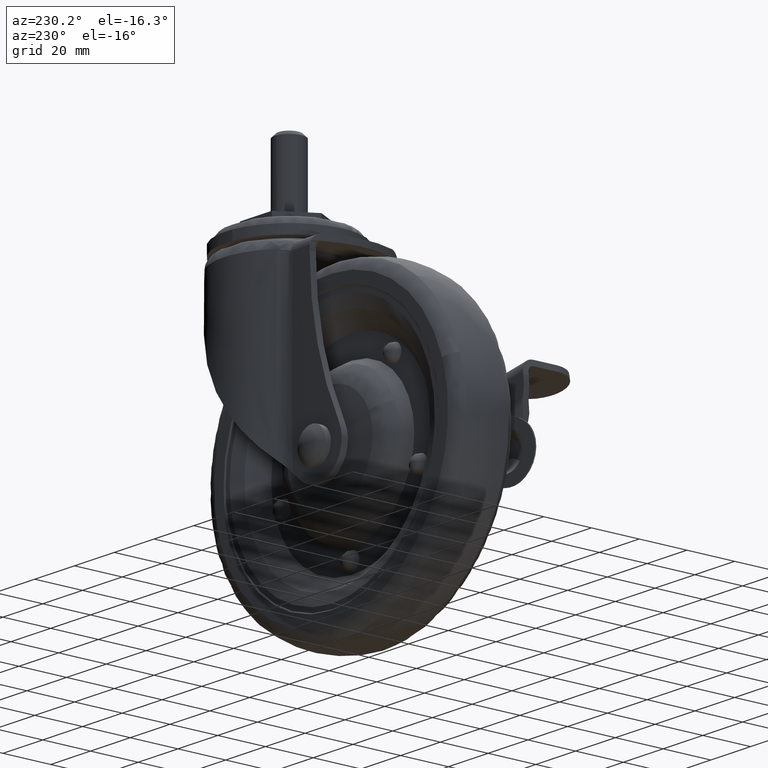
[diagram: clean part render]
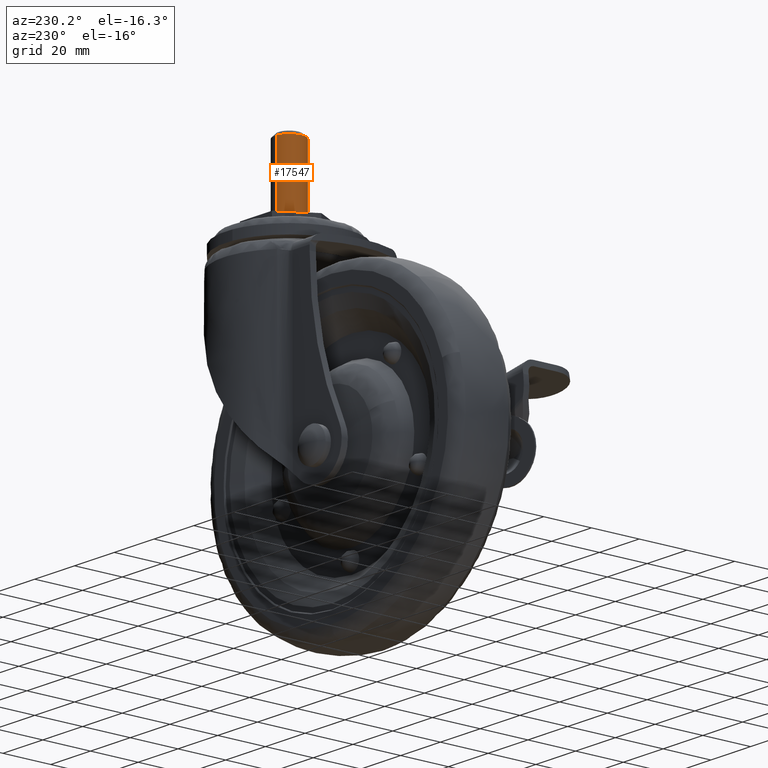
[diagram: same view with one face highlighted and labeled with its STEP entity id]
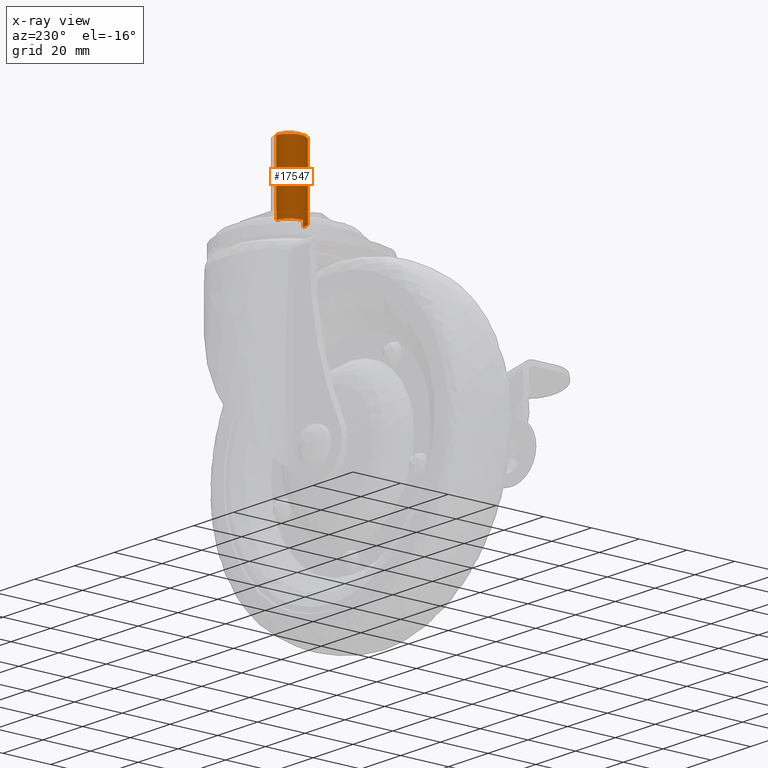
[diagram: x-ray of the same camera — body ghosted, the highlighted face saturated]
A machine part, auxiliary view. The second image highlights one B-rep face of the part: STEP entity #17547.
The next image is the same camera in x-ray: the body ghosted, the highlighted face saturated — about 1% of this face is hidden behind the body in this view.
In plain terms, the highlighted face is a freeform B-spline surface patch.
Its self-contained STEP definition (entity closure, byte-faithful):
#17292=CARTESIAN_POINT('',(0.366293618114310,-5.988847717787391,28.500000000000401));
#17293=VERTEX_POINT('',#17292);
#17337=CARTESIAN_POINT('',(-0.708210011420233,5.958095885536245,28.500000000000352));
#17338=VERTEX_POINT('',#17337);
#17354=CARTESIAN_POINT('',(-6.000038999999900,0.0,28.500000000000352));
#17355=VERTEX_POINT('',#17354);
#17356=CARTESIAN_POINT('',(-6.000038999999900,0.0,28.500000000000352));
#17357=CARTESIAN_POINT('',(-6.000038999999900,5.329081794254241,28.500000000000355));
#17358=CARTESIAN_POINT('',(-0.708210011420233,5.958095885536245,28.500000000000352));
#17366=(BOUNDED_CURVE()B_SPLINE_CURVE(2,(#17356,#17357,#17358),.UNSPECIFIED.,.F.,.U.)B_SPLINE_CURVE_WITH_KNOTS((3,3),(0.0,0.229562473507444),.UNSPECIFIED.)CURVE()GEOMETRIC_REPRESENTATION_ITEM()RATIONAL_B_SPLINE_CURVE((1.0,0.731050832862507,0.956026754171813))REPRESENTATION_ITEM(''));
#17367=EDGE_CURVE('',#17355,#17338,#17366,.T.);
#17369=CARTESIAN_POINT('',(0.366293618114310,-5.988847717787391,28.500000000000398));
#17370=CARTESIAN_POINT('',(0.183317771373645,-6.000038999999900,28.500000000000355));
#17371=CARTESIAN_POINT('',(0.0,-6.000038999999900,28.500000000000352));
#17372=CARTESIAN_POINT('',(-6.000038999999900,-6.000038999999900,28.500000000000348));
#17373=CARTESIAN_POINT('',(-6.000038999999900,0.0,28.500000000000352));
#17381=(BOUNDED_CURVE()B_SPLINE_CURVE(2,(#17369,#17370,#17371,#17372,#17373),.UNSPECIFIED.,.F.,.U.)B_SPLINE_CURVE_WITH_KNOTS((3,2,3),(0.739332962240569,0.750000000000000,1.0),.UNSPECIFIED.)CURVE()GEOMETRIC_REPRESENTATION_ITEM()RATIONAL_B_SPLINE_CURVE((0.976072041670204,0.987502787901743,1.0,0.707106781186547,1.0))REPRESENTATION_ITEM(''));
#17382=EDGE_CURVE('',#17293,#17355,#17381,.T.);
#17443=CARTESIAN_POINT('',(-0.708210011420234,5.958095885536245,1.249348E-015));
#17444=VERTEX_POINT('',#17443);
#17462=CARTESIAN_POINT('',(-0.708210011420233,5.958095885536245,28.500000000000352));
#17463=CARTESIAN_POINT('',(-0.708210011420234,5.958095885536245,1.249348E-015));
#17464=QUASI_UNIFORM_CURVE('',1,(#17462,#17463),.UNSPECIFIED.,.F.,.U.);
#17465=EDGE_CURVE('',#17338,#17444,#17464,.T.);
#17470=CARTESIAN_POINT('',(0.366293618126455,-5.988847717786754,-4.996004E-016));
#17471=VERTEX_POINT('',#17470);
#17472=CARTESIAN_POINT('',(0.366293618114310,-5.988847717787391,28.500000000000401));
#17473=CARTESIAN_POINT('',(0.366293618126455,-5.988847717786754,-4.996004E-016));
#17474=QUASI_UNIFORM_CURVE('',1,(#17472,#17473),.UNSPECIFIED.,.F.,.U.);
#17475=EDGE_CURVE('',#17293,#17471,#17474,.T.);
#17493=CARTESIAN_POINT('',(0.366293618102178,-5.988847717788238,29.212500000000372));
#17494=CARTESIAN_POINT('',(-5.622554099686061,-6.355141335890416,29.212500000000365));
#17495=CARTESIAN_POINT('',(-5.988847717788238,-0.366293618102178,29.212500000000372));
#17496=CARTESIAN_POINT('',(-6.334758356056731,5.289295325233060,29.212500000000361));
#17497=CARTESIAN_POINT('',(-0.708210011275691,5.958095885553426,29.212500000000368));
#17498=CARTESIAN_POINT('',(0.366293618102178,-5.988847717788238,-0.730312500000011));
#17499=CARTESIAN_POINT('',(-5.622554099686061,-6.355141335890416,-0.730312500000011));
#17500=CARTESIAN_POINT('',(-5.988847717788238,-0.366293618102178,-0.730312500000011));
#17501=CARTESIAN_POINT('',(-6.334758356056731,5.289295325233060,-0.730312500000011));
#17502=CARTESIAN_POINT('',(-0.708210011275691,5.958095885553426,-0.730312500000011));
#17510=(BOUNDED_SURFACE()B_SPLINE_SURFACE(2,1,((#17493,#17498),(#17494,#17499),(#17495,#17500),(#17496,#17501),(#17497,#17502)),.UNSPECIFIED.,.F.,.F.,.U.)B_SPLINE_SURFACE_WITH_KNOTS((3,2,3),(2,2),(0.0,9.941190114269842,19.484732623968888),(0.0,29.942812500000379),.UNSPECIFIED.)GEOMETRIC_REPRESENTATION_ITEM()RATIONAL_B_SPLINE_SURFACE(((1.0,1.0),(0.707106781186548,0.707106781186548),(1.0,1.0),(0.718822509939086,0.718822509939086),(0.977505800795127,0.977505800795127)))REPRESENTATION_ITEM('')SURFACE());
#17511=CARTESIAN_POINT('',(-6.000038999999900,0.0,0.0));
#17512=VERTEX_POINT('',#17511);
#17513=CARTESIAN_POINT('',(-6.000038999999900,0.0,0.0));
#17514=CARTESIAN_POINT('',(-6.000038999999899,5.329081794254275,0.0));
#17515=CARTESIAN_POINT('',(-0.708210011420234,5.958095885536245,1.249348E-015));
#17523=(BOUNDED_CURVE()B_SPLINE_CURVE(2,(#17513,#17514,#17515),.UNSPECIFIED.,.F.,.U.)B_SPLINE_CURVE_WITH_KNOTS((3,3),(0.500000000000000,0.729562473507445),.UNSPECIFIED.)CURVE()GEOMETRIC_REPRESENTATION_ITEM()RATIONAL_B_SPLINE_CURVE((1.0,0.731050832862506,0.956026754171815))REPRESENTATION_ITEM(''));
#17524=EDGE_CURVE('',#17512,#17444,#17523,.T.);
#17525=ORIENTED_EDGE('',*,*,#17524,.F.);
#17526=CARTESIAN_POINT('',(0.366293618126455,-5.988847717786754,-4.996004E-016));
#17527=CARTESIAN_POINT('',(0.183317771373645,-6.000038999999900,0.0));
#17528=CARTESIAN_POINT('',(0.0,-6.000038999999900,0.0));
#17529=CARTESIAN_POINT('',(-6.000038999999900,-6.000038999999900,0.0));
#17530=CARTESIAN_POINT('',(-6.000038999999900,0.0,0.0));
#17538=(BOUNDED_CURVE()B_SPLINE_CURVE(2,(#17526,#17527,#17528,#17529,#17530),.UNSPECIFIED.,.F.,.U.)B_SPLINE_CURVE_WITH_KNOTS((3,2,3),(0.239332962240569,0.250000000000000,0.500000000000000),.UNSPECIFIED.)CURVE()GEOMETRIC_REPRESENTATION_ITEM()RATIONAL_B_SPLINE_CURVE((0.976072041670204,0.987502787901743,1.0,0.707106781186547,1.0))REPRESENTATION_ITEM(''));
#17539=EDGE_CURVE('',#17471,#17512,#17538,.T.);
#17540=ORIENTED_EDGE('',*,*,#17539,.F.);
#17541=ORIENTED_EDGE('',*,*,#17475,.F.);
#17542=ORIENTED_EDGE('',*,*,#17382,.T.);
#17543=ORIENTED_EDGE('',*,*,#17367,.T.);
#17544=ORIENTED_EDGE('',*,*,#17465,.T.);
#17545=EDGE_LOOP('',(#17525,#17540,#17541,#17542,#17543,#17544));
#17546=FACE_OUTER_BOUND('',#17545,.T.);
#17547=ADVANCED_FACE('',(#17546),#17510,.T.);